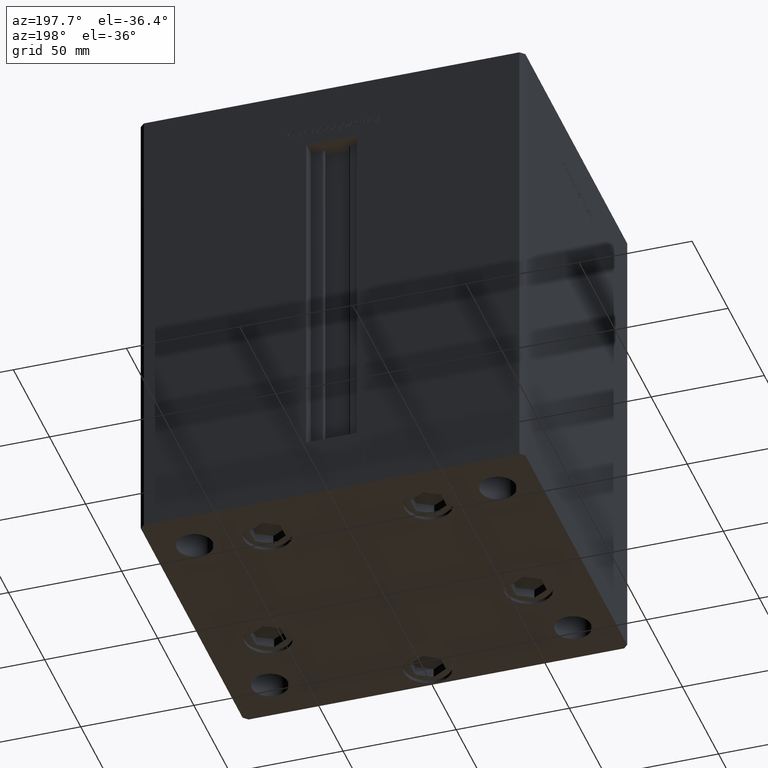
[diagram: clean part render]
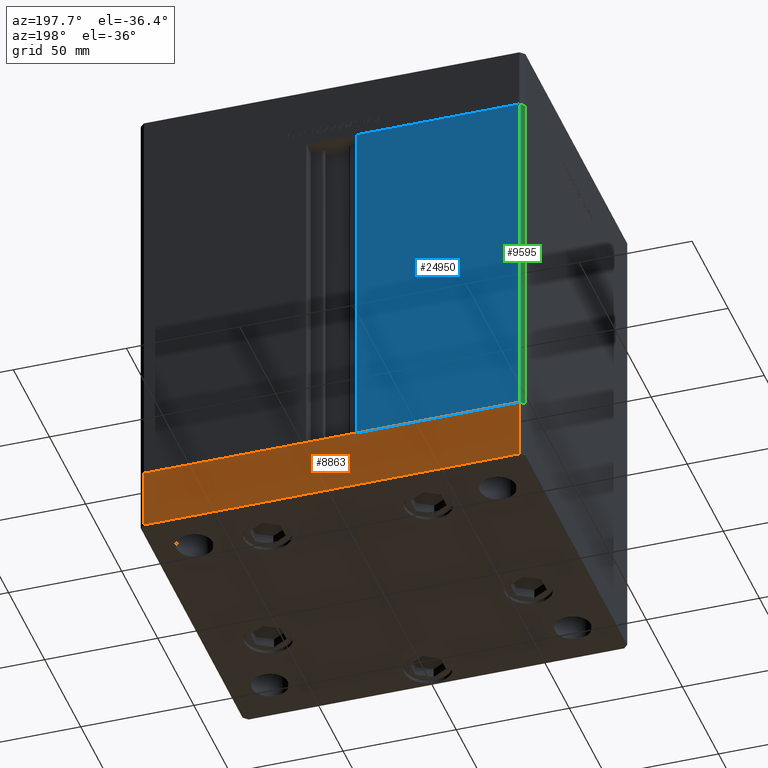
[diagram: same view with three faces highlighted in distinct colors, each labeled with its STEP entity id]
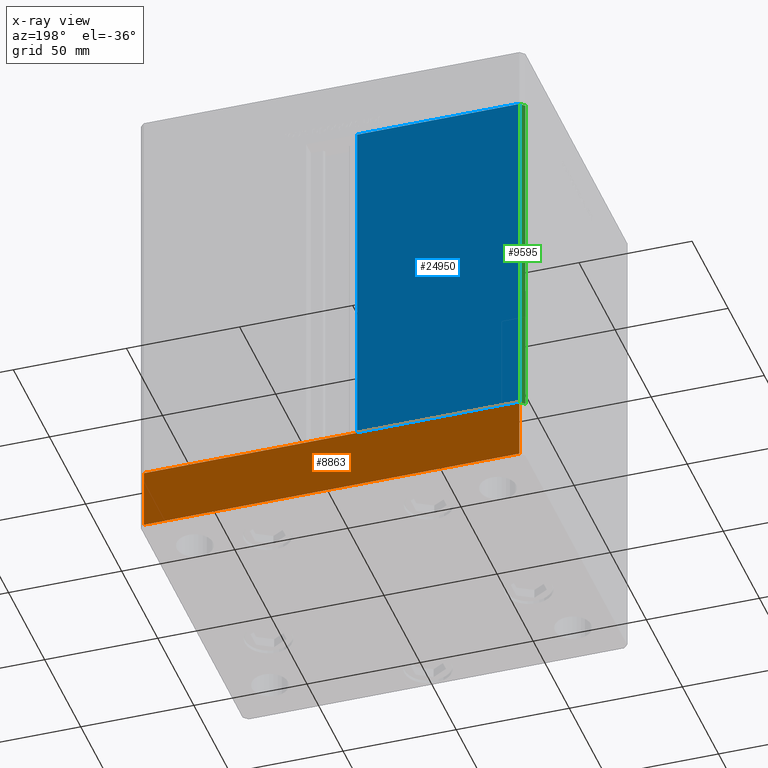
[diagram: x-ray of the same camera — body ghosted, the three highlighted faces saturated]
A machine part, auxiliary view with three faces highlighted in distinct colors.
The next image is the same camera in x-ray (body ghosted, the three faces saturated) — at least one of them is partly hidden behind the body in this view.
Their STEP definitions:

[orange] entity #8863 — the highlighted planar face has unit normal (0, 1, 0).
#3303 = CARTESIAN_POINT ( 'NONE',  ( 82.99999999999992895, 72.50000000000002842, 0.000000000000000000 ) ) ;
#3594 = DIRECTION ( 'NONE',  ( 0.000000000000000000, 0.000000000000000000, 1.000000000000000000 ) ) ;
#7021 = LINE ( 'NONE', #18373, #25848 ) ;
#8863 = ADVANCED_FACE ( 'NONE', ( #37009 ), #49908, .T. ) ;
#9701 = EDGE_CURVE ( 'NONE', #29245, #50762, #27353, .T. ) ;
#11774 = CARTESIAN_POINT ( 'NONE',  ( -83.00000000000001421, 72.49999999999998579, -27.00000000000000000 ) ) ;
#12304 = LINE ( 'NONE', #11774, #31390 ) ;
#12624 = CARTESIAN_POINT ( 'NONE',  ( -83.00000000000001421, 72.49999999999998579, -27.00000000000000000 ) ) ;
#16221 = ORIENTED_EDGE ( 'NONE', *, *, #45004, .T. ) ;
#16992 = ORIENTED_EDGE ( 'NONE', *, *, #9701, .F. ) ;
#18373 = CARTESIAN_POINT ( 'NONE',  ( 82.99999999999992895, 72.50000000000002842, -27.00000000000000000 ) ) ;
#21004 = EDGE_CURVE ( 'NONE', #34613, #44817, #7021, .T. ) ;
#21457 = DIRECTION ( 'NONE',  ( -1.000000000000000000, -2.508033941171287983E-16, 0.000000000000000000 ) ) ;
#24905 = ORIENTED_EDGE ( 'NONE', *, *, #25901, .F. ) ;
#25848 = VECTOR ( 'NONE', #34443, 1000.000000000000000 ) ;
#25901 = EDGE_CURVE ( 'NONE', #34613, #29245, #41648, .T. ) ;
#25924 = DIRECTION ( 'NONE',  ( -2.508033941171287983E-16, 1.000000000000000000, 0.000000000000000000 ) ) ;
#26552 = CARTESIAN_POINT ( 'NONE',  ( 82.99999999999992895, 72.50000000000002842, -27.00000000000000000 ) ) ;
#27109 = CARTESIAN_POINT ( 'NONE',  ( -83.00000000000001421, 72.49999999999998579, 0.000000000000000000 ) ) ;
#27353 = LINE ( 'NONE', #38939, #44173 ) ;
#29245 = VERTEX_POINT ( 'NONE', #3303 ) ;
#31390 = VECTOR ( 'NONE', #3594, 1000.000000000000000 ) ;
#31861 = VECTOR ( 'NONE', #40596, 1000.000000000000000 ) ;
#34443 = DIRECTION ( 'NONE',  ( -1.000000000000000000, -2.508033941171287983E-16, 0.000000000000000000 ) ) ;
#34613 = VERTEX_POINT ( 'NONE', #26552 ) ;
#35509 = DIRECTION ( 'NONE',  ( -1.000000000000000000, -2.508033941171287983E-16, 0.000000000000000000 ) ) ;
#37009 = FACE_OUTER_BOUND ( 'NONE', #39671, .T. ) ;
#37180 = CARTESIAN_POINT ( 'NONE',  ( 82.99999999999992895, 72.50000000000002842, -27.00000000000000000 ) ) ;
#38939 = CARTESIAN_POINT ( 'NONE',  ( 82.99999999999992895, 72.50000000000002842, 0.000000000000000000 ) ) ;
#39671 = EDGE_LOOP ( 'NONE', ( #16992, #24905, #50450, #16221 ) ) ;
#40596 = DIRECTION ( 'NONE',  ( 0.000000000000000000, 0.000000000000000000, 1.000000000000000000 ) ) ;
#41648 = LINE ( 'NONE', #37180, #31861 ) ;
#43260 = AXIS2_PLACEMENT_3D ( 'NONE', #49123, #25924, #21457 ) ;
#44173 = VECTOR ( 'NONE', #35509, 1000.000000000000000 ) ;
#44817 = VERTEX_POINT ( 'NONE', #12624 ) ;
#45004 = EDGE_CURVE ( 'NONE', #44817, #50762, #12304, .T. ) ;
#49123 = CARTESIAN_POINT ( 'NONE',  ( 82.99999999999992895, 72.50000000000002842, -27.00000000000000000 ) ) ;
#49908 = PLANE ( 'NONE',  #43260 ) ;
#50450 = ORIENTED_EDGE ( 'NONE', *, *, #21004, .T. ) ;
#50762 = VERTEX_POINT ( 'NONE', #27109 ) ;

[blue] entity #24950 — the highlighted planar face has unit normal (0, -1, 0).
#678 = AXIS2_PLACEMENT_3D ( 'NONE', #47459, #47202, #27952 ) ;
#1112 = LINE ( 'NONE', #20623, #25276 ) ;
#1365 = VECTOR ( 'NONE', #23275, 1000.000000000000000 ) ;
#2043 = VECTOR ( 'NONE', #3114, 1000.000000000000000 ) ;
#2929 = CARTESIAN_POINT ( 'NONE',  ( -11.25000000000000178, 72.49999999999998579, 156.0000000000000000 ) ) ;
#3114 = DIRECTION ( 'NONE',  ( -0.000000000000000000, -0.000000000000000000, -1.000000000000000000 ) ) ;
#3791 = CARTESIAN_POINT ( 'NONE',  ( -83.00000000000001421, 72.49999999999998579, 0.000000000000000000 ) ) ;
#5326 = DIRECTION ( 'NONE',  ( -0.000000000000000000, -0.000000000000000000, 1.000000000000000000 ) ) ;
#6924 = LINE ( 'NONE', #43299, #1365 ) ;
#12112 = ORIENTED_EDGE ( 'NONE', *, *, #35980, .F. ) ;
#14195 = EDGE_CURVE ( 'NONE', #29519, #52160, #6924, .T. ) ;
#17850 = ORIENTED_EDGE ( 'NONE', *, *, #49089, .T. ) ;
#20050 = PLANE ( 'NONE',  #678 ) ;
#20623 = CARTESIAN_POINT ( 'NONE',  ( -11.25000000000000178, 72.49999999999998579, 0.000000000000000000 ) ) ;
#21107 = ORIENTED_EDGE ( 'NONE', *, *, #49914, .F. ) ;
#21159 = EDGE_LOOP ( 'NONE', ( #17850, #12112, #34352, #21107 ) ) ;
#23275 = DIRECTION ( 'NONE',  ( -1.000000000000000000, 0.000000000000000000, 0.000000000000000000 ) ) ;
#23294 = VERTEX_POINT ( 'NONE', #50877 ) ;
#23588 = DIRECTION ( 'NONE',  ( 1.000000000000000000, 0.000000000000000000, 0.000000000000000000 ) ) ;
#24950 = ADVANCED_FACE ( 'NONE', ( #51159 ), #20050, .F. ) ;
#24981 = VERTEX_POINT ( 'NONE', #2929 ) ;
#25276 = VECTOR ( 'NONE', #5326, 1000.000000000000000 ) ;
#26186 = CARTESIAN_POINT ( 'NONE',  ( -11.25000000000000178, 72.49999999999998579, 0.000000000000000000 ) ) ;
#27952 = DIRECTION ( 'NONE',  ( 0.000000000000000000, -0.000000000000000000, -1.000000000000000000 ) ) ;
#29519 = VERTEX_POINT ( 'NONE', #26186 ) ;
#29820 = VECTOR ( 'NONE', #23588, 1000.000000000000000 ) ;
#32800 = LINE ( 'NONE', #40694, #29820 ) ;
#34352 = ORIENTED_EDGE ( 'NONE', *, *, #14195, .T. ) ;
#35784 = LINE ( 'NONE', #43165, #2043 ) ;
#35980 = EDGE_CURVE ( 'NONE', #29519, #24981, #1112, .T. ) ;
#40694 = CARTESIAN_POINT ( 'NONE',  ( -11.25000000000000178, 72.49999999999998579, 156.0000000000000000 ) ) ;
#43165 = CARTESIAN_POINT ( 'NONE',  ( -83.00000000000001421, 72.49999999999998579, 156.0000000000000000 ) ) ;
#43299 = CARTESIAN_POINT ( 'NONE',  ( -11.25000000000000178, 72.49999999999998579, 0.000000000000000000 ) ) ;
#47202 = DIRECTION ( 'NONE',  ( 0.000000000000000000, -1.000000000000000000, 0.000000000000000000 ) ) ;
#47459 = CARTESIAN_POINT ( 'NONE',  ( -11.25000000000000178, 72.49999999999998579, 156.0000000000000000 ) ) ;
#49089 = EDGE_CURVE ( 'NONE', #23294, #24981, #32800, .T. ) ;
#49914 = EDGE_CURVE ( 'NONE', #23294, #52160, #35784, .T. ) ;
#50877 = CARTESIAN_POINT ( 'NONE',  ( -83.00000000000001421, 72.49999999999998579, 156.0000000000000000 ) ) ;
#51159 = FACE_OUTER_BOUND ( 'NONE', #21159, .T. ) ;
#52160 = VERTEX_POINT ( 'NONE', #3791 ) ;

[green] entity #9595 — the highlighted planar face has unit normal (0.7071, -0.7071, 0).
#1255 = EDGE_CURVE ( 'NONE', #23294, #4439, #22579, .T. ) ;
#1903 = VECTOR ( 'NONE', #31670, 1000.000000000000114 ) ;
#2043 = VECTOR ( 'NONE', #3114, 1000.000000000000000 ) ;
#2317 = PLANE ( 'NONE',  #29803 ) ;
#2541 = CARTESIAN_POINT ( 'NONE',  ( -83.00000000000001421, 72.49999999999998579, 156.0000000000000000 ) ) ;
#2983 = ORIENTED_EDGE ( 'NONE', *, *, #1255, .F. ) ;
#3114 = DIRECTION ( 'NONE',  ( -0.000000000000000000, -0.000000000000000000, -1.000000000000000000 ) ) ;
#3791 = CARTESIAN_POINT ( 'NONE',  ( -83.00000000000001421, 72.49999999999998579, 0.000000000000000000 ) ) ;
#4439 = VERTEX_POINT ( 'NONE', #29547 ) ;
#5911 = CARTESIAN_POINT ( 'NONE',  ( -85.00000000000001421, 70.49999999999998579, 156.0000000000000000 ) ) ;
#9595 = ADVANCED_FACE ( 'NONE', ( #14187 ), #2317, .F. ) ;
#14187 = FACE_OUTER_BOUND ( 'NONE', #23535, .T. ) ;
#14411 = DIRECTION ( 'NONE',  ( -0.7071067811865474617, -0.7071067811865474617, 0.000000000000000000 ) ) ;
#17102 = VERTEX_POINT ( 'NONE', #49593 ) ;
#17196 = ORIENTED_EDGE ( 'NONE', *, *, #41823, .F. ) ;
#17266 = LINE ( 'NONE', #5911, #25397 ) ;
#18401 = DIRECTION ( 'NONE',  ( 0.7071067811865475727, -0.7071067811865475727, 0.000000000000000000 ) ) ;
#20395 = ORIENTED_EDGE ( 'NONE', *, *, #49914, .T. ) ;
#21995 = DIRECTION ( 'NONE',  ( -0.000000000000000000, -0.000000000000000000, -1.000000000000000000 ) ) ;
#22579 = LINE ( 'NONE', #2541, #36805 ) ;
#23294 = VERTEX_POINT ( 'NONE', #50877 ) ;
#23535 = EDGE_LOOP ( 'NONE', ( #31259, #17196, #2983, #20395 ) ) ;
#25397 = VECTOR ( 'NONE', #21995, 1000.000000000000000 ) ;
#28240 = CARTESIAN_POINT ( 'NONE',  ( -83.00000000000001421, 72.49999999999998579, 0.000000000000000000 ) ) ;
#29547 = CARTESIAN_POINT ( 'NONE',  ( -85.00000000000001421, 70.49999999999998579, 156.0000000000000000 ) ) ;
#29803 = AXIS2_PLACEMENT_3D ( 'NONE', #46339, #18401, #34469 ) ;
#31259 = ORIENTED_EDGE ( 'NONE', *, *, #44444, .T. ) ;
#31670 = DIRECTION ( 'NONE',  ( -0.7071067811865474617, -0.7071067811865474617, 0.000000000000000000 ) ) ;
#34469 = DIRECTION ( 'NONE',  ( 0.7071067811865474617, 0.7071067811865474617, 0.000000000000000000 ) ) ;
#35784 = LINE ( 'NONE', #43165, #2043 ) ;
#36805 = VECTOR ( 'NONE', #14411, 1000.000000000000114 ) ;
#41823 = EDGE_CURVE ( 'NONE', #4439, #17102, #17266, .T. ) ;
#43165 = CARTESIAN_POINT ( 'NONE',  ( -83.00000000000001421, 72.49999999999998579, 156.0000000000000000 ) ) ;
#44444 = EDGE_CURVE ( 'NONE', #52160, #17102, #44833, .T. ) ;
#44833 = LINE ( 'NONE', #28240, #1903 ) ;
#46339 = CARTESIAN_POINT ( 'NONE',  ( -83.00000000000001421, 72.49999999999998579, 156.0000000000000000 ) ) ;
#49593 = CARTESIAN_POINT ( 'NONE',  ( -85.00000000000001421, 70.49999999999998579, 0.000000000000000000 ) ) ;
#49914 = EDGE_CURVE ( 'NONE', #23294, #52160, #35784, .T. ) ;
#50877 = CARTESIAN_POINT ( 'NONE',  ( -83.00000000000001421, 72.49999999999998579, 156.0000000000000000 ) ) ;
#52160 = VERTEX_POINT ( 'NONE', #3791 ) ;